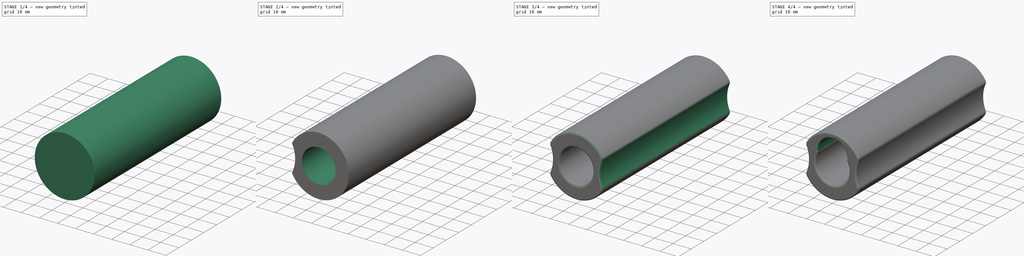
[diagram: build sequence overview — one tinted view per stage of 4, left to right]
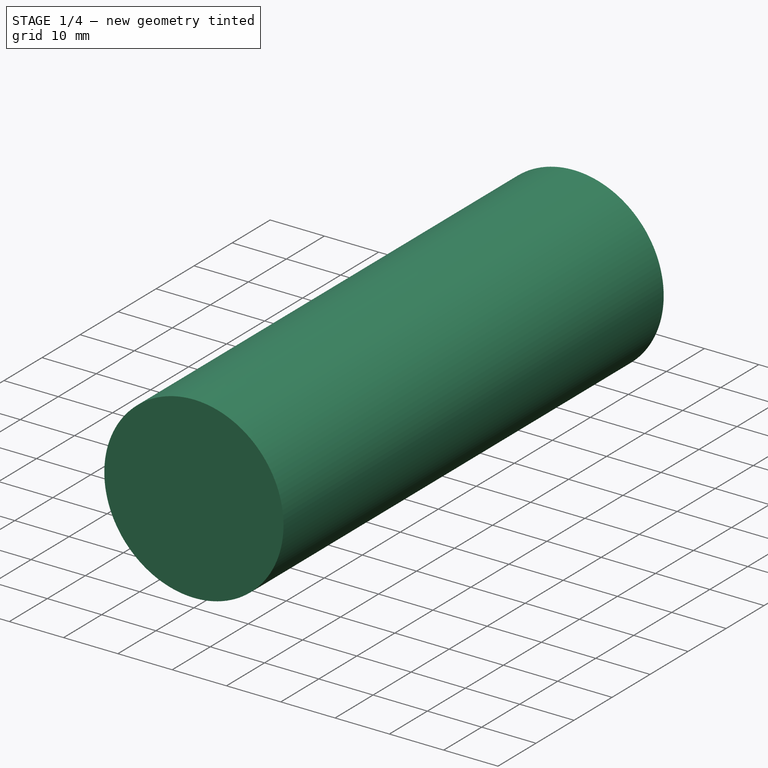
[diagram: stage 1 of 4 — iso view after this stage's code; geometry added in this stage tinted green]
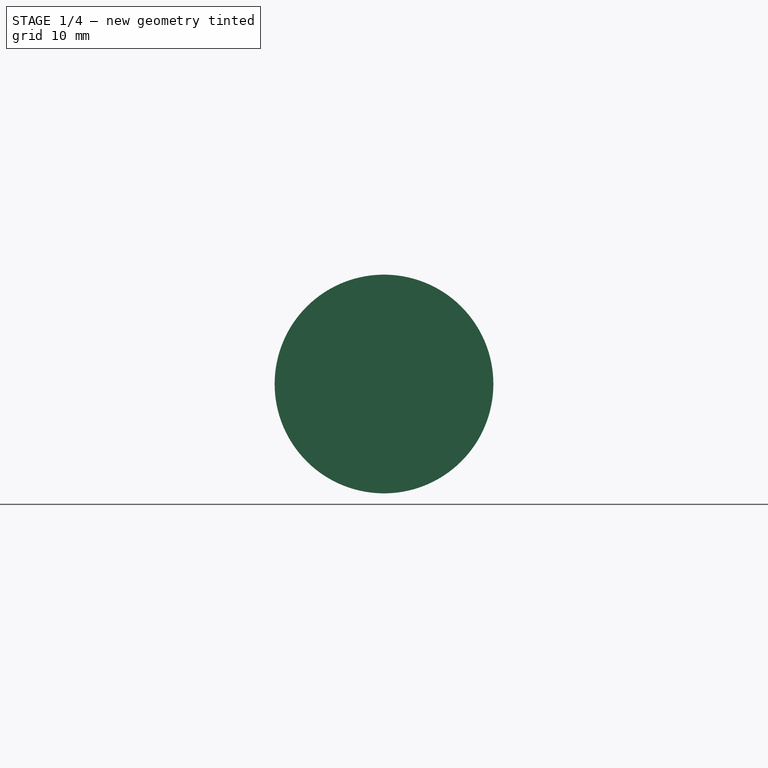
[diagram: stage 1 of 4 — front view after this stage's code; geometry added in this stage tinted green]
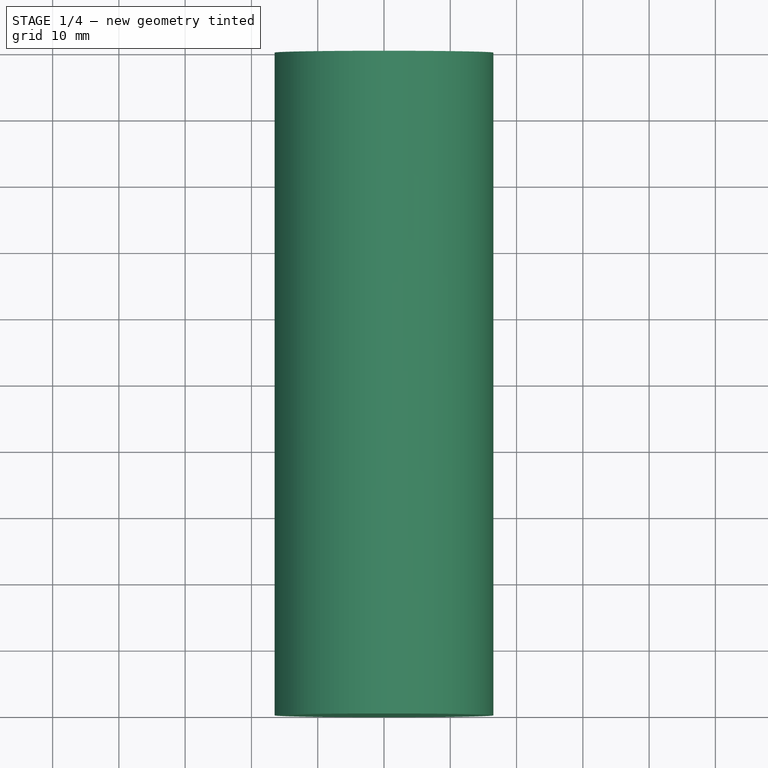
[diagram: stage 1 of 4 — top view after this stage's code; geometry added in this stage tinted green]
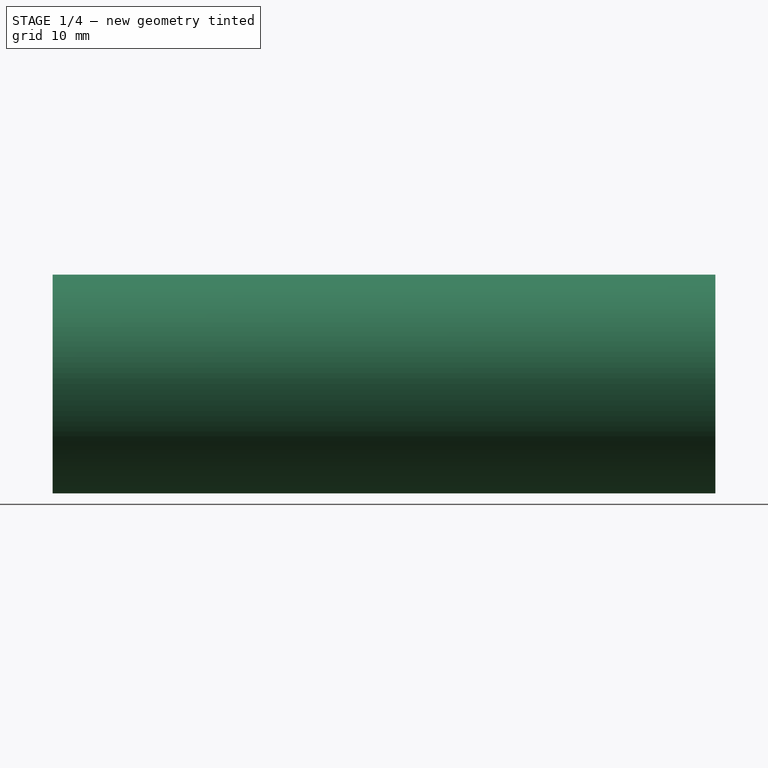
[diagram: stage 1 of 4 — right view after this stage's code; geometry added in this stage tinted green]
FCSTD DOCUMENT  (FreeCAD 0.20R29177 +233 (Git))
Label: D_to_18650_carrier
License: All rights reserved
LicenseURL: http://en.wikipedia.org/wiki/All_rights_reserved
objects: Sketcher::SketchObject×8, PartDesign::Pocket×6, PartDesign::Fillet×4, Spreadsheet::Sheet×2, PartDesign::Pad×1, Part::Part2DObjectPython×1, Part::Helix×1, PartDesign::SubtractivePipe×1, PartDesign::PolarPattern×1, PartDesign::Body×1
note: 36 computed .brp shape members not serialized (recipe doc carries the construction recipe); baked Part::Feature solids carry a one-line shape summary decoded from their .brp

FEATURE [Sketcher::SketchObject] Sketch
  FullyConstrained = true
  MapMode = 5
  Placement = pos=(0,0,0) rot=(1,0,0;1.5708rad)
  Support = -> [XZ_Plane]
  expr: Constraints[1] = <<carrier_dims>>.width
  sketch-geometry (1):
    g0: Circle CenterX=0 CenterY=0 CenterZ=0 NormalX=0 NormalY=0 NormalZ=1 AngleXU=0 Radius=16.5
  constraints (2):
    c: Coincident(g0,g-1)
    c: Diameter(g0) = 33
FEATURE [PartDesign::Pad] Pad
  Direction = (0,-1,-2e-16)
  Length = 100
  Length2 = 10
  Placement = pos=(0,0,0) rot=(1,0,0;1.5708rad)
  Profile = -> Sketch
  ReferenceAxis = -> Sketch [N_Axis]
  Type = 0
  expr: Length = <<carrier_dims>>.overall_length
FEATURE [Sketcher::SketchObject] Sketch004
  ExternalGeometry = -> [Pad]
  FullyConstrained = true
  MapMode = 5
  Placement = pos=(0,0,0) rot=(-1,0,0;1.5708rad)
  Support = -> [Pad]
  sketch-geometry (3):
    g0: Circle CenterX=0 CenterY=0 CenterZ=0 NormalX=0 NormalY=0 NormalZ=1 AngleXU=0 Radius=11.5
    g1: GeomPoint X=-16.5 Y=0 Z=0
    g2: GeomPoint X=-11.5 Y=0 Z=0
  constraints (6):
    c: Coincident(g0,g-1)
    c: PointOnObject(g1,g-3)
    c: PointOnObject(g2,g0)
    c: PointOnObject(g2,g-1)
    c: PointOnObject(g1,g-1)
    c: DistanceX(g1,g2) = 5
FEATURE [PartDesign::Pocket] Pocket002  label="washer pocket"
  BaseFeature = -> Pad
  Direction = (0,-1,-2e-16)
  Length = 2
  Length2 = 5
  Placement = pos=(0,0,0) rot=(1,0,0;1.5708rad)
  Profile = -> Sketch004
  ReferenceAxis = -> Sketch004 [N_Axis]
  Type = 0
FEATURE [Sketcher::SketchObject] Sketch001
  FullyConstrained = true
  MapMode = 5
  Placement = pos=(0,-2,-4e-16) rot=(-1,0,0;1.5708rad)
  Support = -> [Pocket002]
  sketch-geometry (1):
    g0: Circle CenterX=0 CenterY=0 CenterZ=0 NormalX=0 NormalY=0 NormalZ=1 AngleXU=0 Radius=3.175
  constraints (2):
    c: Coincident(g0,g-1)
    c: Diameter(g0) = 6.35
FEATURE [Part::Part2DObjectPython] VThreadProfile  # Draft 2D object (typed FeaturePython)
  Area = 24.7218
  Closed = true
  Continuity = C2
  Height = 7.5
  Helix = Helix
  Instructions = Expand this with the ... button to view instructions | Sweep this object along a helix of the same pitch to produce your thread. | It is recommended to make the helix in the ThreadProfile workbench. | If there is an active Body the ThreadProfile object will be put into it.,If not it can be dragged and dropped into the body later. | If there is an active Body when the helix is made there will be made a ShapeBinder for it | For internal threads you will need to cut the Sweep object out of a cylinder, or if using Part Design sweep it as a Subtractive Pipe. | Always use Frenet mode | I have provided some presets, but it is possible there could be some errors.  Double check for mission critical applications. | Also, the tolerances might be different from what you wish to have.  I believe the internal minor diameters are all minimum and the external are all maximum.
  InternalOrExternal = 0
  MakeFace = true
  MapMode = 11
  MinorDiameter = 4.97586
  Parameterization = 1
  Pitch = 1.27
  Placement = pos=(0,-2,-4e-16) rot=(-0.57735,0.57735,-0.57735;4.18879rad)
  Points = (66) [(2.47644,0.238788,0),(2.44209,0.475372,0),(2.38519,0.707566,0),(2.30627,0.933227,0),(2.20605,1.15027,0),(2.08547,1.35669,0),(1.94563,1.55059,0),+59 more]
  Presets = 213
  Quality = 11
  Support = -> [Sketch001]
  ThreadCount = 5.90551
  Variants = 0
  Version = 1.83
  external2S_data = [-0.00461051,-0.00886426,-0.0128148,-0.0165028,-0.0199596,-0.0232105,-0.0262759,-0.0291725,-0.0319145,-0.0345137,-0.0369805,-0.0393235,-0.0415505,-0.0436681,-0.0456823,-0.0475981,-0.0494204,-0.0511532,-0.0528003,-0.0543649,-0.0558502,+698 more]
  external3S_data = [-0.00677828,-0.0128149,-0.0182584,-0.0232106,-0.0277444,-0.0319145,-0.0357632,-0.0393236,-0.0426227,-0.0456823,-0.0485208,-0.0511533,-0.0535928,-0.0558503,-0.0579353,-0.059856,-0.0616195,-0.0632319,-0.0646984,-0.0660239,-0.0672123,+698 more]
  external45_data = [-0.00137363,-0.00271738,-0.00403219,-0.00531893,-0.00657844,-0.00781148,-0.00901878,-0.010201,-0.0113589,-0.012493,-0.0136039,-0.0146921,-0.0157583,-0.0168028,-0.0178261,-0.0188288,-0.0198112,-0.0207738,-0.0217169,-0.0226409,-0.0235462,+698 more]
  external_data = [-0.00235387,-0.00461052,-0.00677828,-0.00886428,-0.0108747,-0.0128149,-0.0146895,-0.0165028,-0.0182584,-0.0199597,-0.0216095,-0.0232106,-0.0247653,-0.0262759,-0.0277444,-0.0291725,-0.0305621,-0.0319145,-0.0332313,-0.0345138,-0.0357632,+698 more]
  internal2S_data = [0,0,0,0,0,0,0,0,0,0,0,0,0,0,0,0,0,0,0,0,0,0,0,0,0,0,0,0,0,0,0,0,0,0,0,0,0,0,0,0,0,0,0,0,0,0,0,0,0,0,0,0,0,0,0,0,0,0,0,0,0,0,0,0,0,0,0,0,0,0,0,0,0,0,0,0,0,0,0,0,0,0,0,0,0,0,0,0,0,0,0.00481128,0.00962256,0.0144338,0.0192451,0.0240564,+624 more]
  internal3S_data = [0,0,0,0,0,0,0,0,0,0,0,0,0,0,0,0,0,0,0,0,0,0,0,0,0,0,0,0,0,0,0,0,0,0,0,0,0,0,0,0,0,0,0,0,0,0,0,0,0,0,0,0,0,0,0,0,0,0,0,0,0.00721688,0.0144338,0.0216506,0.0288675,0.0360844,0.0433013,0.0505181,0.057735,0.0649519,0.0721688,0.0793857,0.0866025,+647 more]
  internal45_data = [0,0,0,0,0,0,0,0,0,0,0,0,0,0,0,0,0,0,0,0,0,0,0,0,0,0,0,0,0,0,0,0,0,0,0,0,0,0,0,0,0,0,0,0,0,0,0,0,0,0,0,0,0,0,0,0,0,0,0,0,0,0,0,0,0,0,0,0,0,0,0,0,0,0,0,0,0,0,0,0,0,0,0,0,0,0,0,0,0,0,0,0,0,0,0,0,0,0,0,0,0,0,0,0,0,0,0,0,0,0,0,0,0,0,0,0,0,0,0,0,+599 more]
  internal_data = [0,0,0,0,0,0,0,0,0,0,0,0,0,0,0,0,0,0,0,0,0,0,0,0,0,0,0,0,0,0,0,0,0,0,0,0,0,0,0,0,0,0,0,0,0,0,0,0,0,0,0,0,0,0,0,0,0,0,0,0,0,0,0,0,0,0,0,0,0,0,0,0,0,0,0,0,0,0,0,0,0,0,0,0,0,0,0,0,0,0,0,0,0,0,0,0,0,0,0,0,0,0,0,0,0,0,0,0,0,0,0,0,0,0,0,0,0,0,0,0,+599 more]
  preset_names = <blob: 3959 chars omitted>
  presets_data = [0,0,0,2.20878,24.1173,24.6888,0.25,0.693,0.729,0.25,0.793,0.829,0.25,0.893,0.929,0.3,1.032,1.075,0.35,1.171,1.221,0.35,1.371,1.421,0.4,1.509,1.567,0.45,1.648,1.713,0.45,1.948,2.013,0.5,2.387,2.459,0.6,2.764,2.85,0.7,3.141,3.242,0.75,3.58,+712 more]
  expr: Height = <<carrier_dims>>.thread_length
FEATURE [Part::Helix] Helix
  Angle = 0
  AttacherType = Attacher::AttachEngine3D
  Height = 7.5
  LocalCoord = 0
  MapMode = 11
  Pitch = 1.27
  Placement = pos=(0,-2,-4e-16) rot=(-0.57735,0.57735,-0.57735;4.18879rad)
  Radius = 1
  SegmentLength = 0
  Style = 0
  Support = -> [Sketch001]
  expr: AttachmentOffset = VThreadProfile.AttachmentOffset
  expr: Height = VThreadProfile.ThreadCount * VThreadProfile.Pitch
  expr: MapMode = VThreadProfile.MapMode
  expr: MapPathParameter = VThreadProfile.MapPathParameter
  expr: MapReversed = VThreadProfile.MapReversed
  expr: Pitch = VThreadProfile.Pitch
  expr: Support = VThreadProfile.Support
FEATURE [Spreadsheet::Sheet] Spreadsheet  label="carrier_dims"
  cells = A1=overall length; B1(overall_length)==D2_length; A2=width; B2(width)=33; A3=thickness; A4=thread length; B4(thread_length)=7.5; A5=quarter 20 nut width; B5(nut_width)=11.2; A6=quater 20 nut height; B6(nut_height)=4; A7=socket diam; B7(socket_diam)=16.1; A10=1.5 d length; B10=65; A11=2 d length; B11(D2_length)=100
FEATURE [Spreadsheet::Sheet] Spreadsheet001  label="battery_dims"
  cells = A1=length; A2=diameter; B2(diam)==width_18650; A14=18650 length; A15=18650 width; B15(width_18650)=18.5
FEATURE [PartDesign::SubtractivePipe] SubtractivePipe
  AuxilleryCurvelinear = true
  AuxillerySpineTangent = false
  BaseFeature = -> Pocket002
  Binormal = (0,0,0)
  Mode = 2
  Placement = pos=(0,0,0) rot=(1,0,0;1.5708rad)
  Profile = -> VThreadProfile
  Spine = -> Helix
  SpineTangent = false
  Transformation = 0
  Transition = 0
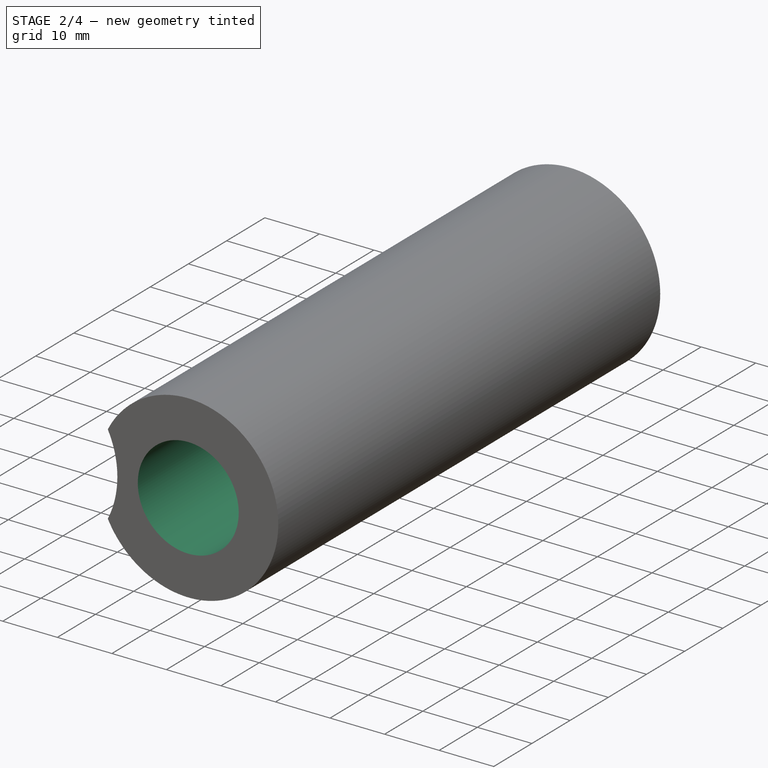
[diagram: stage 2 of 4 — iso view after this stage's code; geometry added in this stage tinted green]
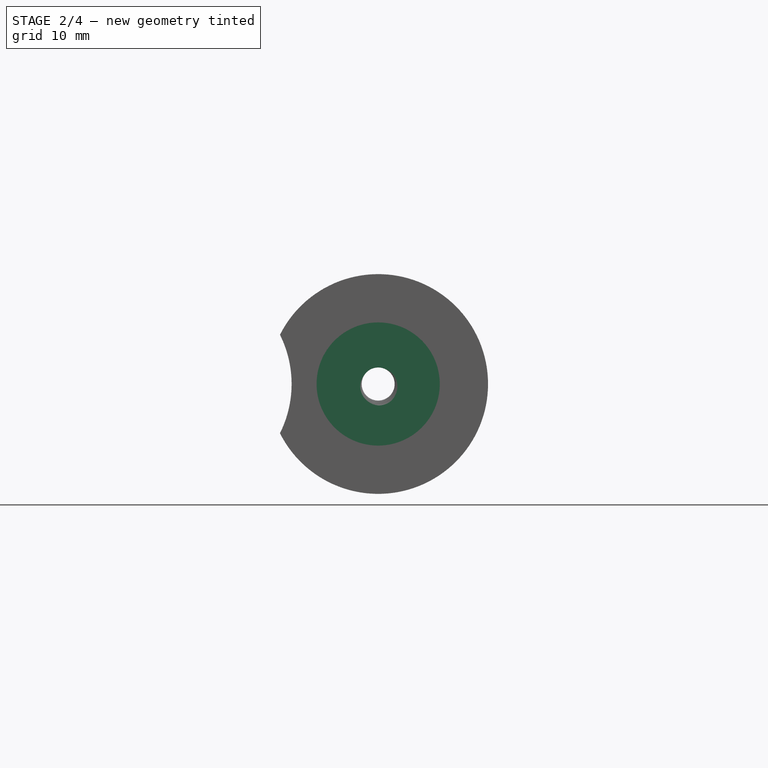
[diagram: stage 2 of 4 — front view after this stage's code; geometry added in this stage tinted green]
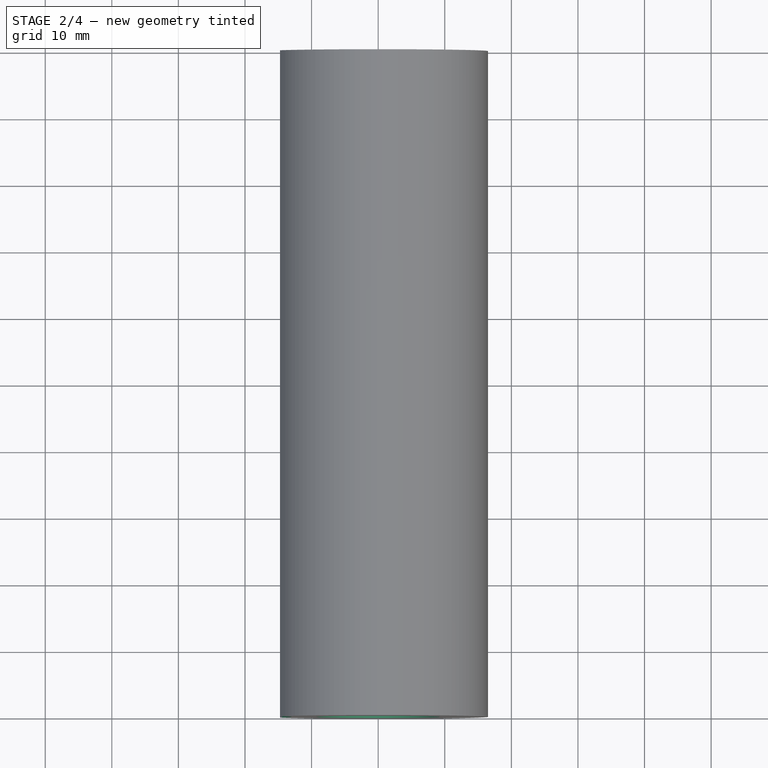
[diagram: stage 2 of 4 — top view after this stage's code; geometry added in this stage tinted green]
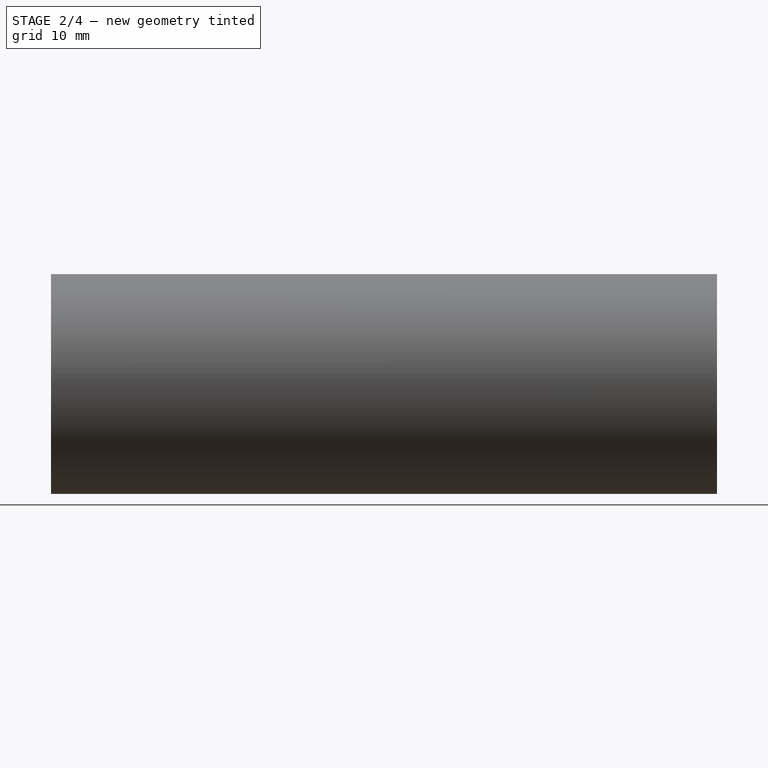
[diagram: stage 2 of 4 — right view after this stage's code; geometry added in this stage tinted green]
FEATURE [Sketcher::SketchObject] Sketch005
  FullyConstrained = false
  MapMode = 5
  Placement = pos=(-1.93039e-05,-9.5,-2.86022e-05) rot=(-1,1e-06,-1e-06;1.57079rad)
  Support = -> [SubtractivePipe]
  expr: Constraints[18] = <<carrier_dims>>.nut_width
  sketch-geometry (7):
    g0: LineSegment StartX=-6.2114 StartY=-1.79774 StartZ=0 EndX=-1.54881 EndY=-6.2781 EndZ=0
    g1: LineSegment StartX=-1.54881 StartY=-6.2781 StartZ=0 EndX=4.66259 EndY=-4.48036 EndZ=0
    g2: LineSegment StartX=4.66259 StartY=-4.48036 StartZ=0 EndX=6.2114 EndY=1.79774 EndZ=0
    g3: LineSegment StartX=6.2114 StartY=1.79774 StartZ=0 EndX=1.54881 EndY=6.2781 EndZ=0
    g4: LineSegment StartX=1.54881 StartY=6.2781 StartZ=0 EndX=-4.66259 EndY=4.48036 EndZ=0
    g5: LineSegment StartX=-4.66259 StartY=4.48036 StartZ=0 EndX=-6.2114 EndY=-1.79774 EndZ=0
    g6: Circle CenterX=0 CenterY=0 CenterZ=0 NormalX=0 NormalY=0 NormalZ=1 AngleXU=0 Radius=6.46632
  constraints (15):
    c: Coincident(g0,g1)
    c: Coincident(g1,g2)
    c: Coincident(g2,g3)
    c: Coincident(g3,g4)
    c: Coincident(g4,g5)
    c: Coincident(g5,g0)
    c: Equal(g0, g1-g5) x5
    c: PointOnObject(g0,g6)
    c: PointOnObject(g1,g6)
    c: PointOnObject(g2,g6)
    c: PointOnObject(g3,g6)
    c: PointOnObject(g4,g6)
    c: PointOnObject(g5,g6)
    c: Coincident(g6,g-1)
    c: Distance(g0,g3) = 11.2
FEATURE [PartDesign::Pocket] Pocket003  label="nut container"
  BaseFeature = -> SubtractivePipe
  Direction = (-2.03199e-06,-1,-3.01076e-06)
  Length = 4
  Length2 = 5
  Placement = pos=(0,0,0) rot=(1,0,0;1.5708rad)
  Profile = -> Sketch005
  ReferenceAxis = -> Sketch005 [N_Axis]
  Type = 0
  expr: Length = <<carrier_dims>>.nut_height
FEATURE [Sketcher::SketchObject] Sketch002
  FullyConstrained = true
  MapMode = 5
  Placement = pos=(-2.74318e-05,-13.5,-4.06453e-05) rot=(-1,1e-06,-1e-06;1.57079rad)
  Support = -> [Pocket003]
  expr: Constraints[1] = <<battery_dims>>.diam
  sketch-geometry (1):
    g0: Circle CenterX=0 CenterY=0 CenterZ=0 NormalX=0 NormalY=0 NormalZ=1 AngleXU=0 Radius=9.25
  constraints (2):
    c: Coincident(g0,g-1)
    c: Diameter(g0) = 18.5
FEATURE [PartDesign::Pocket] Pocket  label="battery pocket"
  BaseFeature = -> Pocket003
  Direction = (-2.03199e-06,-1,-3.01076e-06)
  Length = 5
  Length2 = 5
  Placement = pos=(0,0,0) rot=(1,0,0;1.5708rad)
  Profile = -> Sketch002
  ReferenceAxis = -> Sketch002 [N_Axis]
  Type = 2
FEATURE [Sketcher::SketchObject] Sketch003
  ExternalGeometry = -> [Pocket]
  FullyConstrained = true
  MapMode = 5
  Placement = pos=(0,0,0) rot=(-1,0,0;1.5708rad)
  Support = -> [Pocket]
  expr: Constraints[3] = <<carrier_dims>>.width
  sketch-geometry (3):
    g0: Circle CenterX=-29.5 CenterY=0 CenterZ=0 NormalX=0 NormalY=0 NormalZ=1 AngleXU=0 Radius=16.5
    g1: GeomPoint X=-13 Y=0 Z=0
    g2: GeomPoint X=-11.5 Y=0 Z=0
  constraints (7):
    c: PointOnObject(g0,g-1)
    c: PointOnObject(g1,g0)
    c: PointOnObject(g1,g-1)
    c: Diameter(g0) = 33
    c: DistanceX(g1,g2) = 1.5
    c: PointOnObject(g2,g-3)
    c: PointOnObject(g2,g-1)
FEATURE [PartDesign::Pocket] Pocket001  label="side grip"
  BaseFeature = -> Pocket
  Direction = (0,-1,-2e-16)
  Length = 0
  Length2 = 5
  Placement = pos=(0,0,0) rot=(1,0,0;1.5708rad)
  Profile = -> Sketch003
  ReferenceAxis = -> Sketch003 [N_Axis]
  Reversed = true
  Type = 3
  UpToFace = -> Pocket [Face3]
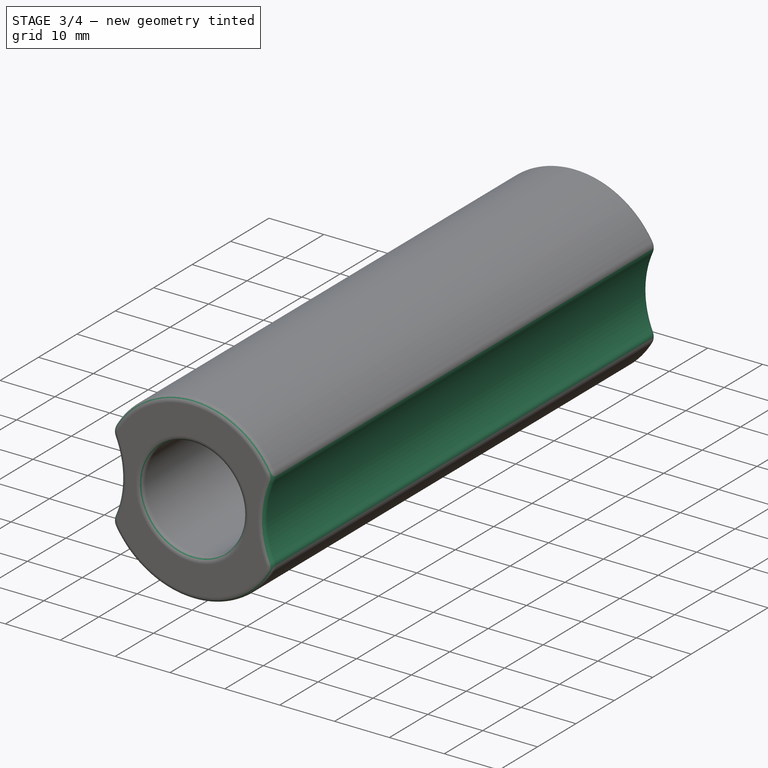
[diagram: stage 3 of 4 — iso view after this stage's code; geometry added in this stage tinted green]
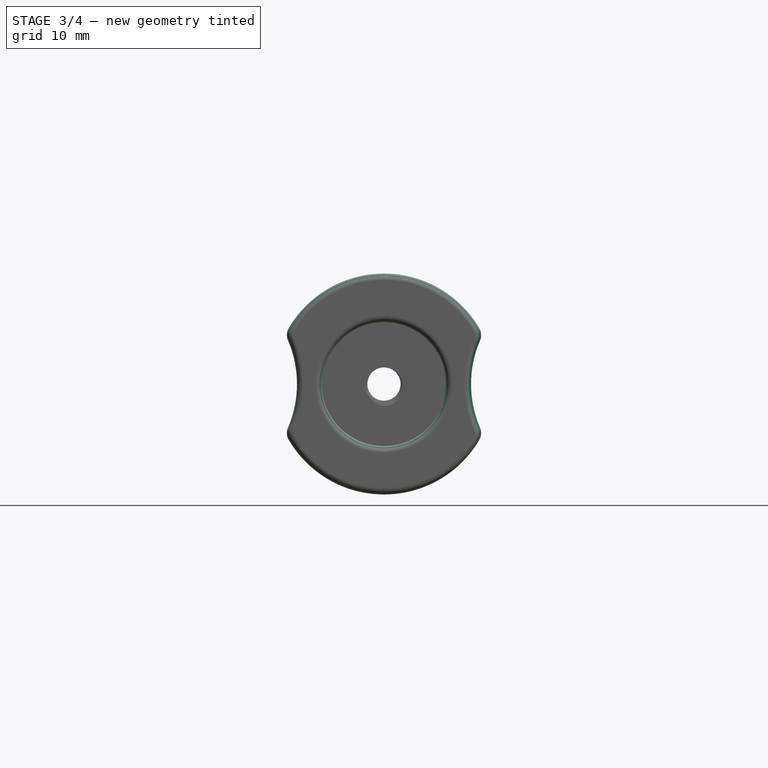
[diagram: stage 3 of 4 — front view after this stage's code; geometry added in this stage tinted green]
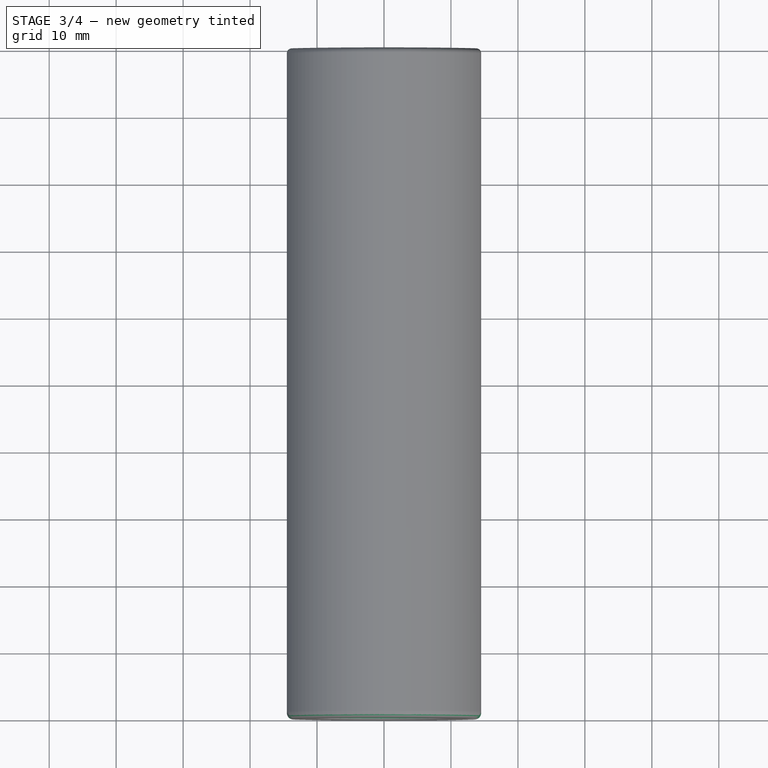
[diagram: stage 3 of 4 — top view after this stage's code; geometry added in this stage tinted green]
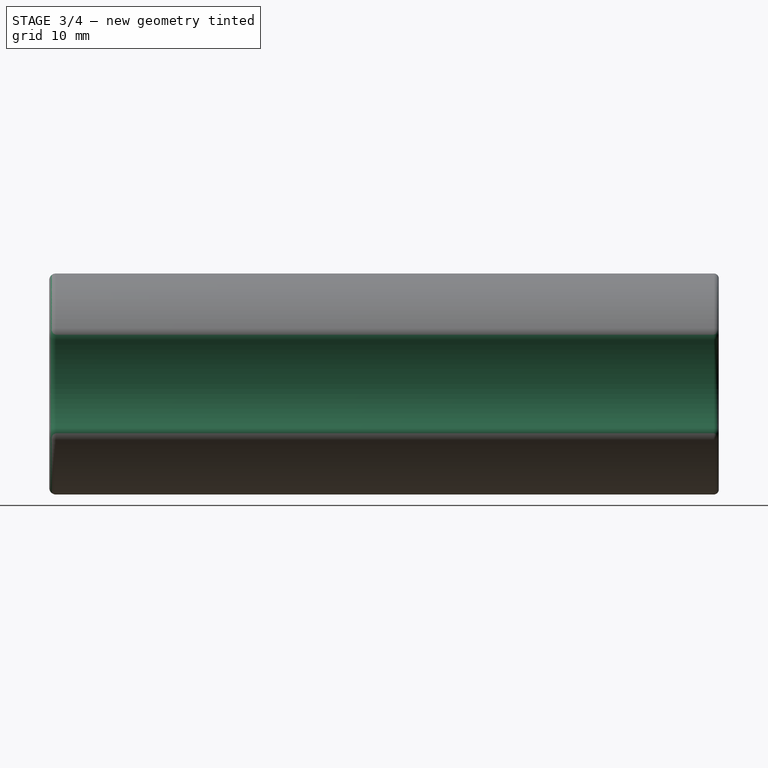
[diagram: stage 3 of 4 — right view after this stage's code; geometry added in this stage tinted green]
FEATURE [PartDesign::Fillet] Fillet  label="side grip fillet"
  Base = -> Pocket001 [Edge14,Edge2]
  BaseFeature = -> Pocket001
  Placement = pos=(0,0,0) rot=(1,0,0;1.5708rad)
  Radius = 2
  SupportTransform = false
  UseAllEdges = false
FEATURE [PartDesign::PolarPattern] PolarPattern  label="rest of side grip"
  Angle = 360
  Axis = -> Sketch003 [N_Axis]
  BaseFeature = -> Fillet
  Occurrences = 2
  Originals = -> [Pocket001,Fillet]
  Placement = pos=(0,0,0) rot=(1,0,0;1.5708rad)
FEATURE [PartDesign::Fillet] Fillet001
  Base = -> PolarPattern [Face4]
  BaseFeature = -> PolarPattern
  Placement = pos=(0,0,0) rot=(1,0,0;1.5708rad)
  Radius = 1
  SupportTransform = false
  UseAllEdges = false
FEATURE [PartDesign::Fillet] Fillet002
  Base = -> Fillet001 [Edge3,Edge6,Edge13,Edge14,Edge15,Edge18,Edge11,Edge12,Edge16,Edge17]
  BaseFeature = -> Fillet001
  Placement = pos=(0,0,0) rot=(1,0,0;1.5708rad)
  Radius = 0.75
  SupportTransform = false
  UseAllEdges = false
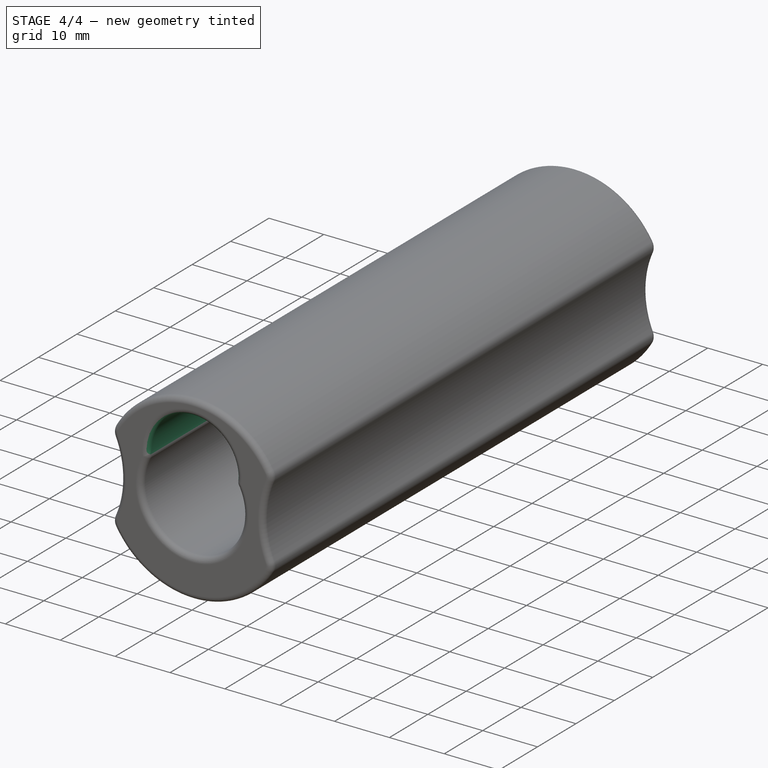
[diagram: stage 4 of 4 — iso view after this stage's code; geometry added in this stage tinted green]
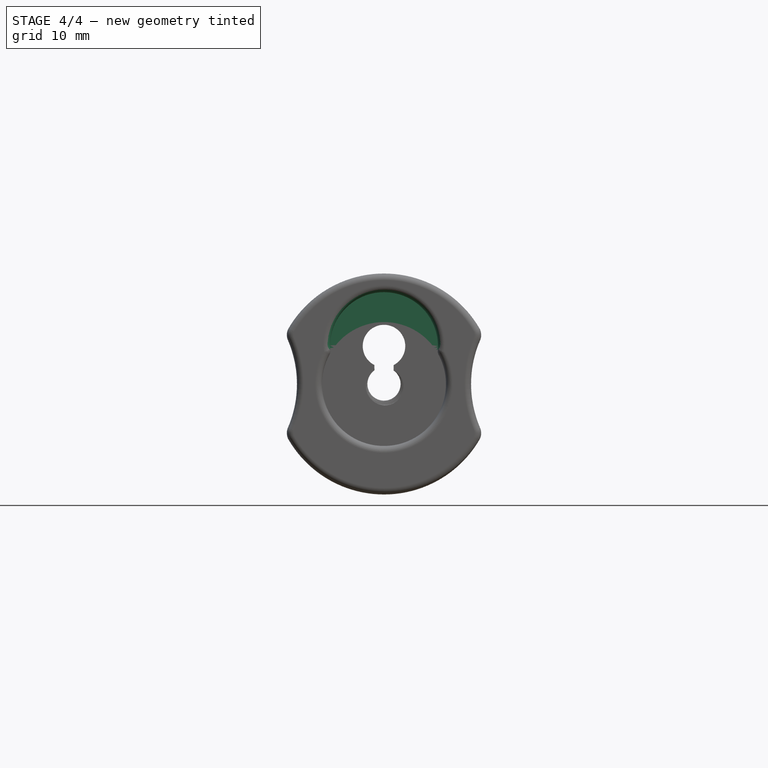
[diagram: stage 4 of 4 — front view after this stage's code; geometry added in this stage tinted green]
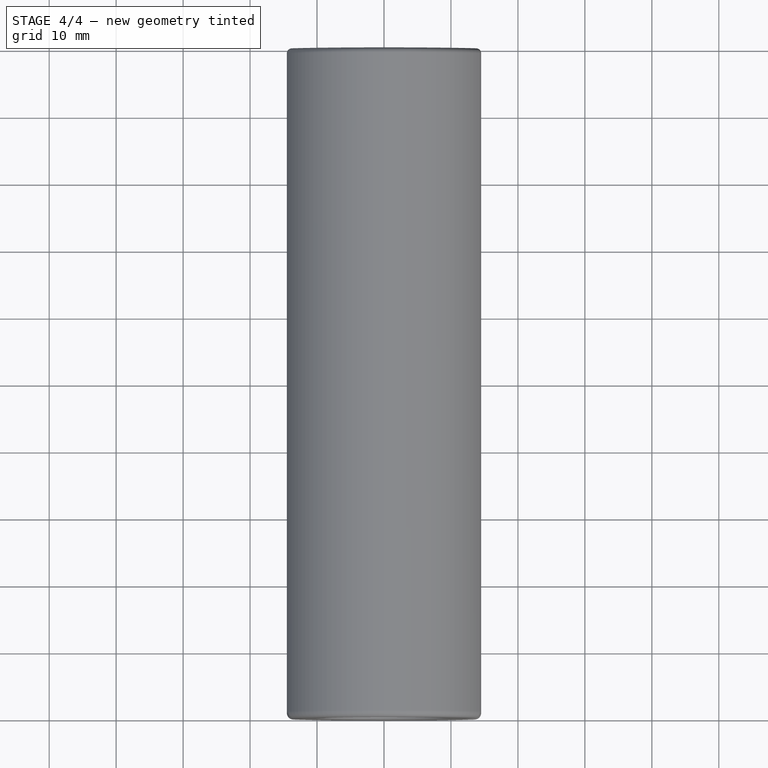
[diagram: stage 4 of 4 — top view after this stage's code; geometry added in this stage tinted green]
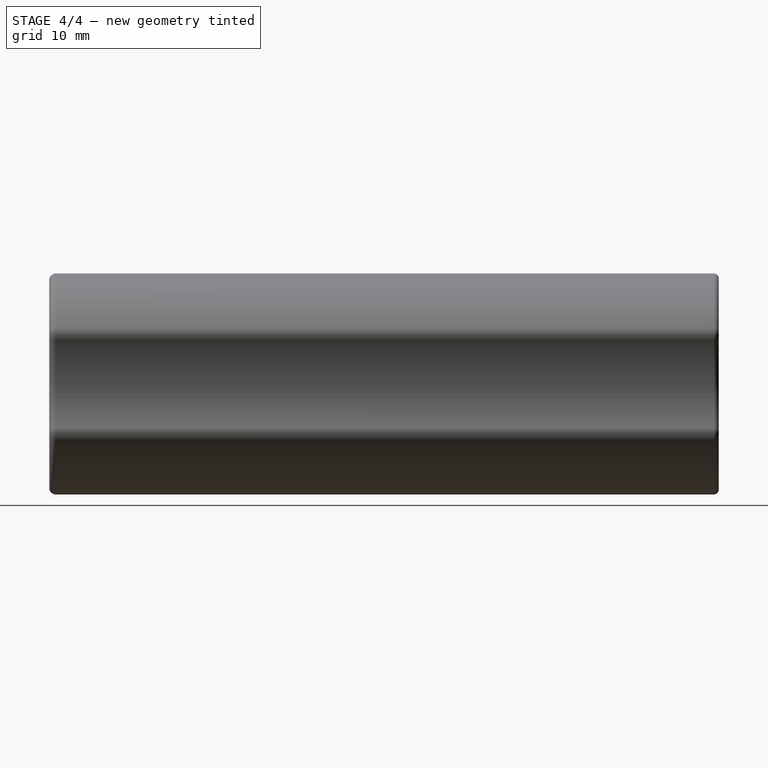
[diagram: stage 4 of 4 — right view after this stage's code; geometry added in this stage tinted green]
FEATURE [Sketcher::SketchObject] Sketch006
  ExternalGeometry = -> [Sketch001]
  FullyConstrained = true
  MapMode = 5
  Placement = pos=(0,-2,-4e-16) rot=(-1,0,0;1.5708rad)
  Support = -> [Fillet002]
  sketch-geometry (6):
    g0: Circle CenterX=0 CenterY=-5.6642 CenterZ=0 NormalX=0 NormalY=0 NormalZ=1 AngleXU=0 Radius=3.175
    g1: Circle CenterX=0 CenterY=0 CenterZ=0 NormalX=0 NormalY=0 NormalZ=1 AngleXU=0 Radius=2.38252
    g2: ArcOfCircle CenterX=0 CenterY=-5.6642 CenterZ=0 NormalX=0 NormalY=0 NormalZ=1 AngleXU=0 Radius=3.175 StartAngle=2.03984 EndAngle=7.38494
    g3: LineSegment StartX=-1.43521 StartY=-2.8321 StartZ=0 EndX=-1.43521 EndY=-1.90173 EndZ=0
    g4: LineSegment StartX=1.43521 StartY=-2.8321 StartZ=0 EndX=1.43521 EndY=-1.90173 EndZ=0
    g5: LineSegment StartX=-1.43521 StartY=-1.90173 StartZ=0 EndX=1.43521 EndY=-1.90173 EndZ=0
  constraints (17):
    c: PointOnObject(g0,g-2)
    c: Equal(g0,g-3)
    c: DistanceY(g0,g-3) = 5.6642
    c: Coincident(g1,g-3)
    c: Diameter(g1) = 4.76504
    c: Coincident(g2,g0)
    c: PointOnObject(g2,g0)
    c: PointOnObject(g2,g-3)
    c: PointOnObject(g2,g-3)
    c: Coincident(g3,g2)
    c: PointOnObject(g3,g1)
    c: Vertical(g3)
    c: Coincident(g4,g2)
    c: PointOnObject(g4,g1)
    c: Vertical(g4)
    c: Coincident(g5,g3)
    c: Coincident(g5,g4)
FEATURE [PartDesign::Pocket] Pocket004  label="adjustment srew hole"
  BaseFeature = -> Fillet002
  Direction = (0,-1,-2e-16)
  Length = 0
  Length2 = 5
  Placement = pos=(0,0,0) rot=(1,0,0;1.5708rad)
  Profile = -> Sketch006
  ReferenceAxis = -> Sketch006 [N_Axis]
  Type = 3
  UpToFace = -> Fillet002 [Face38]
FEATURE [Sketcher::SketchObject] Sketch007
  ExternalGeometry = -> [Sketch006]
  FullyConstrained = true
  MapMode = 5
  Placement = pos=(-2.74318e-05,-13.5,-4.06453e-05) rot=(1,-1e-06,-1e-06;1.5708rad)
  Support = -> [Pocket004]
  expr: Constraints[1] = <<carrier_dims>>.socket_diam
  sketch-geometry (1):
    g0: Circle CenterX=4.06394e-06 CenterY=5.66421 CenterZ=0 NormalX=0 NormalY=0 NormalZ=1 AngleXU=0 Radius=8.05
  constraints (2):
    c: Coincident(g0,g-3)
    c: Diameter(g0) = 16.1
FEATURE [PartDesign::Pocket] Pocket005  label="socket access"
  BaseFeature = -> Pocket004
  Direction = (2.03199e-06,1,3.01076e-06)
  Length = 0
  Length2 = 5
  Placement = pos=(0,0,0) rot=(1,0,0;1.5708rad)
  Profile = -> Sketch007
  ReferenceAxis = -> Sketch007 [N_Axis]
  Type = 3
  UpToFace = -> Pocket004 [Face12]
FEATURE [PartDesign::Fillet] Fillet003
  Base = -> Pocket005 [Edge78,Edge94]
  BaseFeature = -> Pocket005
  Placement = pos=(0,0,0) rot=(1,0,0;1.5708rad)
  Radius = 1
  SupportTransform = false
  UseAllEdges = false
FEATURE [PartDesign::Body] Body
  Group = -> [Sketch,Pad,Sketch001,VThreadProfile,Sketch002,Helix,Sketch004,Pocket002,SubtractivePipe,Sketch005,Pocket003,Pocket,Sketch003,Pocket001,Fillet,PolarPattern,Fillet001,Fillet002,Sketch006,Pocket004,Sketch007,Pocket005,Fillet003]
  Origin = -> Origin
  Tip = -> Fillet003
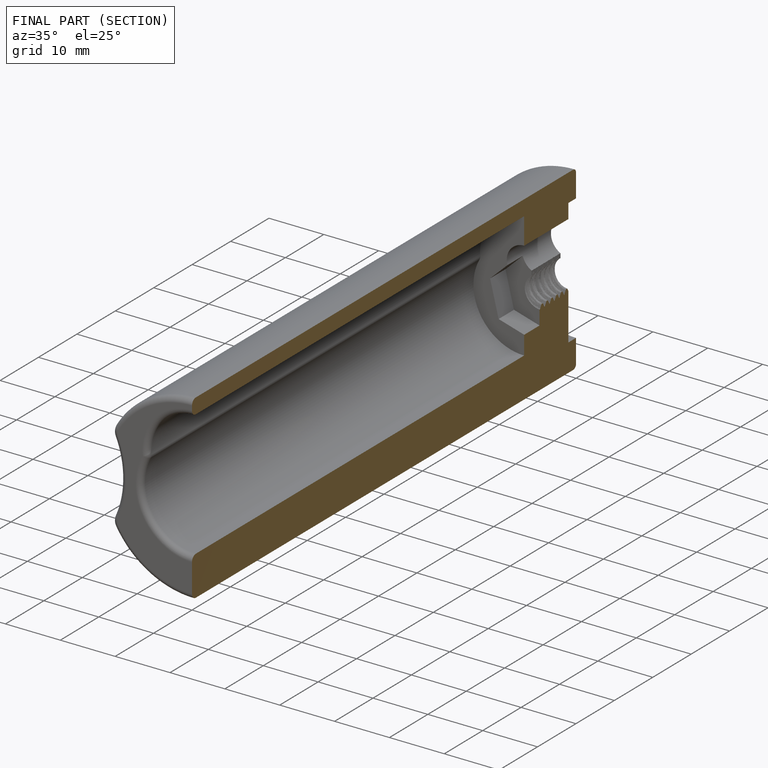
[diagram: finished part — half-section view (interior)]
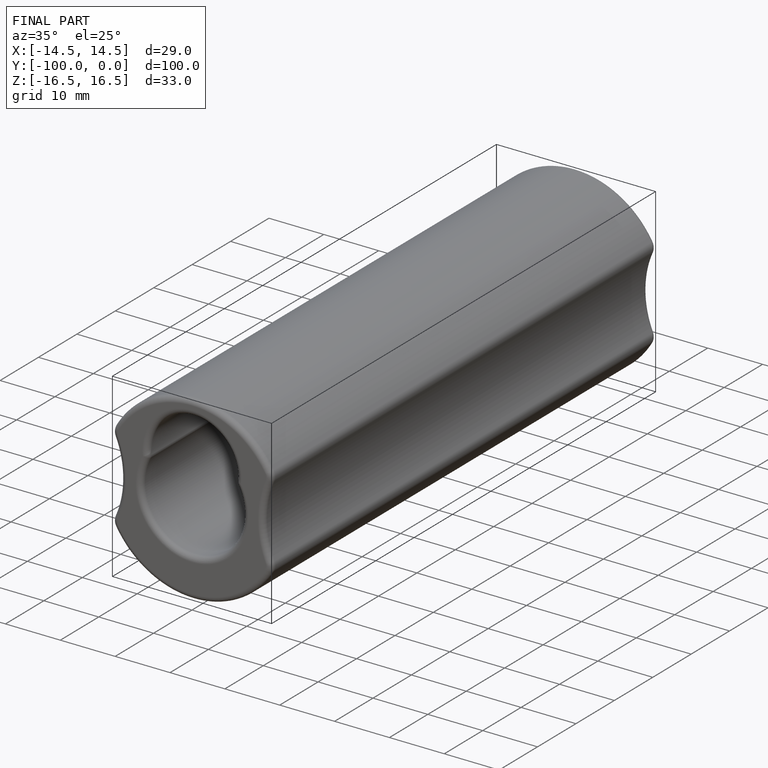
[diagram: finished part — iso view with bounding-box wireframe]
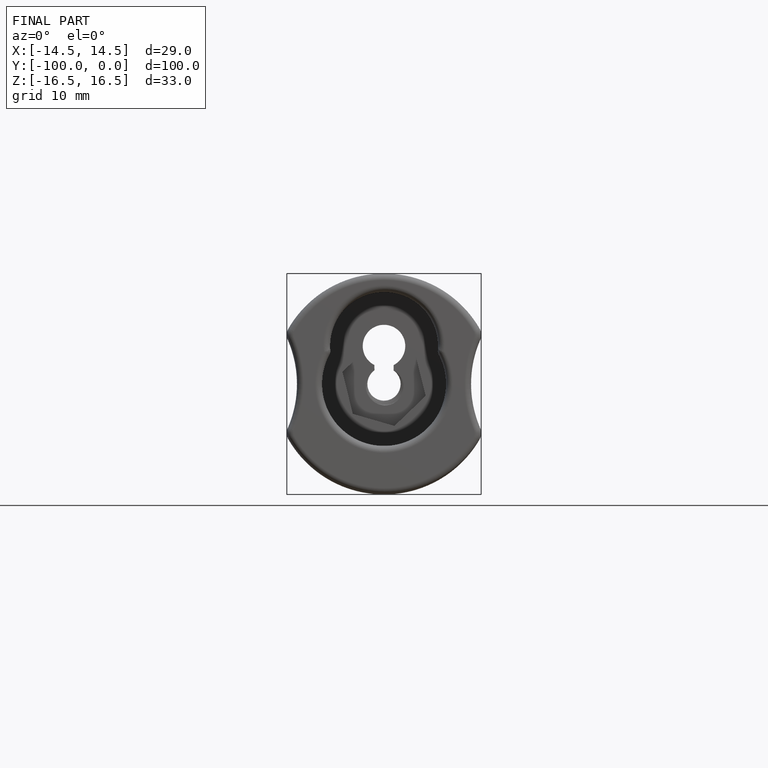
[diagram: finished part — front view with bounding-box wireframe]
